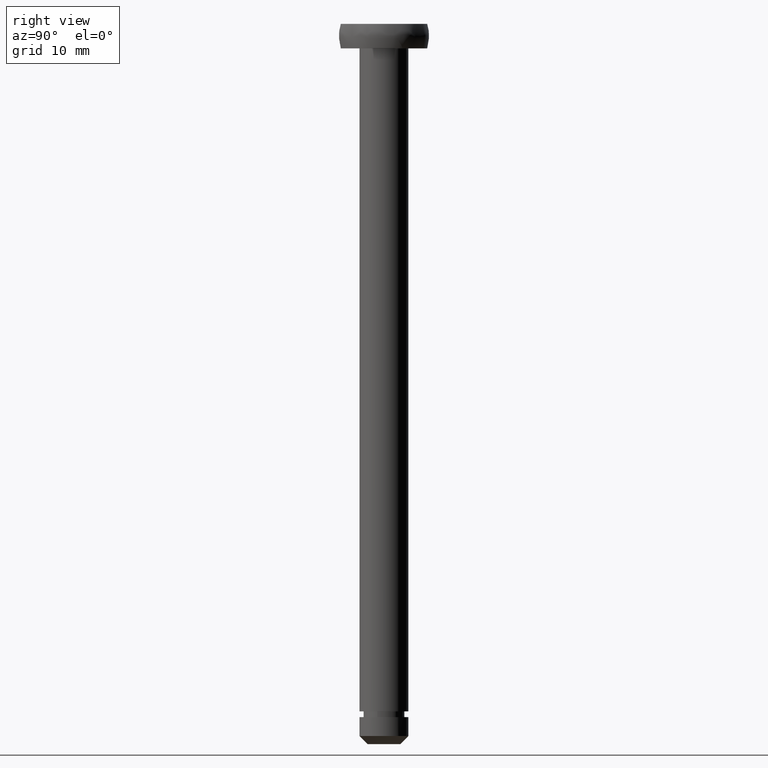
[diagram: clean part render]
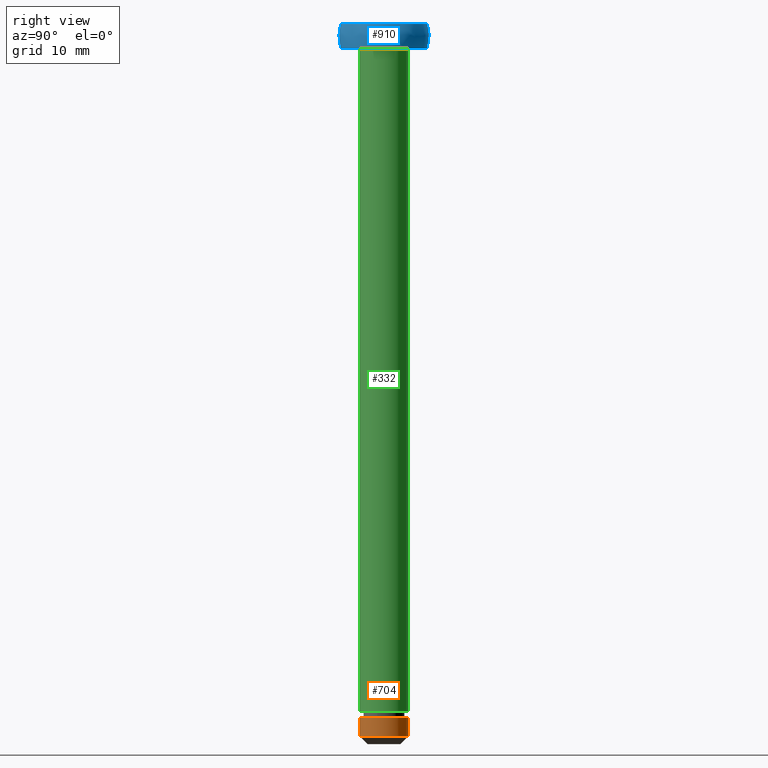
[diagram: same view with three faces highlighted in distinct colors, each labeled with its STEP entity id]
A machine part, right view with three faces highlighted in distinct colors.
Their STEP definitions:

[orange] entity #704 — the highlighted face is a freeform B-spline surface patch.
#438=CARTESIAN_POINT('',(-0.354102703992168,2.979028579088397,1.000000000000000));
#439=VERTEX_POINT('',#438);
#440=CARTESIAN_POINT('',(2.529120146451898,1.613552380587868,1.000000000014941));
#441=VERTEX_POINT('',#440);
#442=CARTESIAN_POINT('',(-0.354102703992168,2.979028579088397,1.000000000000000));
#443=CARTESIAN_POINT('',(-0.177672358977854,3.0,1.0));
#444=CARTESIAN_POINT('',(0.0,3.0,1.0));
#445=CARTESIAN_POINT('',(1.644580967672012,3.000000000000000,1.0));
#446=CARTESIAN_POINT('',(2.529120146451898,1.613552380587869,1.000000000014941));
#454=(BOUNDED_CURVE()B_SPLINE_CURVE(2,(#442,#443,#444,#445,#446),.UNSPECIFIED.,.F.,.U.)B_SPLINE_CURVE_WITH_KNOTS((3,2,3),(0.229562473513160,0.250000000000000,0.407950112598444),.UNSPECIFIED.)CURVE()GEOMETRIC_REPRESENTATION_ITEM()RATIONAL_B_SPLINE_CURVE((0.956026754183017,0.976055948330737,1.0,0.814949932436378,0.863729296936946))REPRESENTATION_ITEM(''));
#455=EDGE_CURVE('',#439,#441,#454,.T.);
#498=CARTESIAN_POINT('',(0.235377287306013,-2.990752001205871,1.000000000016077));
#499=VERTEX_POINT('',#498);
#505=CARTESIAN_POINT('',(0.183145618696712,-2.994404395259965,1.000000000000000));
#506=VERTEX_POINT('',#505);
#507=CARTESIAN_POINT('',(0.235377287306013,-2.990752001205872,1.000000000016077));
#508=CARTESIAN_POINT('',(0.209277390087529,-2.992806107650916,1.0));
#509=CARTESIAN_POINT('',(0.183145618696712,-2.994404395259965,1.000000000000000));
#517=(BOUNDED_CURVE()B_SPLINE_CURVE(2,(#507,#508,#509),.UNSPECIFIED.,.F.,.U.)B_SPLINE_CURVE_WITH_KNOTS((3,3),(0.736331300618871,0.739332962231349),.UNSPECIFIED.)CURVE()GEOMETRIC_REPRESENTATION_ITEM()RATIONAL_B_SPLINE_CURVE((0.969723356142816,0.972855475539379,0.976072041650444))REPRESENTATION_ITEM(''));
#518=EDGE_CURVE('',#499,#506,#517,.T.);
#571=CARTESIAN_POINT('',(3.0,0.0,1.0));
#572=VERTEX_POINT('',#571);
#573=CARTESIAN_POINT('',(2.529120146451898,1.613552380587868,1.000000000014941));
#574=CARTESIAN_POINT('',(3.0,0.875484166448296,1.0));
#575=CARTESIAN_POINT('',(3.0,0.0,1.0));
#583=(BOUNDED_CURVE()B_SPLINE_CURVE(2,(#573,#574,#575),.UNSPECIFIED.,.F.,.U.)B_SPLINE_CURVE_WITH_KNOTS((3,3),(0.407950112598444,0.500000000000000),.UNSPECIFIED.)CURVE()GEOMETRIC_REPRESENTATION_ITEM()RATIONAL_B_SPLINE_CURVE((0.863729296936946,0.892156848750170,1.0))REPRESENTATION_ITEM(''));
#584=EDGE_CURVE('',#441,#572,#583,.T.);
#586=CARTESIAN_POINT('',(3.0,0.0,1.0));
#587=CARTESIAN_POINT('',(3.000000000000000,-2.773171474749122,1.0));
#588=CARTESIAN_POINT('',(0.235377287306013,-2.990752001205871,1.000000000016077));
#596=(BOUNDED_CURVE()B_SPLINE_CURVE(2,(#586,#587,#588),.UNSPECIFIED.,.F.,.U.)B_SPLINE_CURVE_WITH_KNOTS((3,3),(0.500000000000000,0.736331300618871),.UNSPECIFIED.)CURVE()GEOMETRIC_REPRESENTATION_ITEM()RATIONAL_B_SPLINE_CURVE((1.0,0.723120658621477,0.969723356142815))REPRESENTATION_ITEM(''));
#597=EDGE_CURVE('',#572,#499,#596,.T.);
#632=CARTESIAN_POINT('',(-0.354102703970275,2.979028579091000,3.357503075000002));
#633=CARTESIAN_POINT('',(-0.268844185913933,2.989162846345817,3.357503075000000));
#634=CARTESIAN_POINT('',(-0.183145618604571,2.994404395265600,3.357503075000001));
#635=CARTESIAN_POINT('',(2.811258776661029,3.177550013870171,3.357503075000001));
#636=CARTESIAN_POINT('',(2.994404395265600,0.183145618604571,3.357503075000001));
#637=CARTESIAN_POINT('',(3.177550013870171,-2.811258776661029,3.357503075000001));
#638=CARTESIAN_POINT('',(0.183145618604571,-2.994404395265600,3.357503075000001));
#639=CARTESIAN_POINT('',(-0.354102703970275,2.979028579091000,0.941062423125000));
#640=CARTESIAN_POINT('',(-0.268844185913933,2.989162846345817,0.941062423125000));
#641=CARTESIAN_POINT('',(-0.183145618604571,2.994404395265600,0.941062423125000));
#642=CARTESIAN_POINT('',(2.811258776661029,3.177550013870171,0.941062423125000));
#643=CARTESIAN_POINT('',(2.994404395265600,0.183145618604571,0.941062423125000));
#644=CARTESIAN_POINT('',(3.177550013870171,-2.811258776661029,0.941062423125000));
#645=CARTESIAN_POINT('',(0.183145618604571,-2.994404395265600,0.941062423125000));
#653=(BOUNDED_SURFACE()B_SPLINE_SURFACE(2,1,((#632,#639),(#633,#640),(#634,#641),(#635,#642),(#636,#643),(#637,#644),(#638,#645)),.UNSPECIFIED.,.F.,.F.,.U.)B_SPLINE_SURFACE_WITH_KNOTS((3,2,2,3),(2,2),(0.0,0.198822509939086,5.169385258416225,10.139948006893370),(0.0,2.416440651875001),.UNSPECIFIED.)GEOMETRIC_REPRESENTATION_ITEM()RATIONAL_B_SPLINE_SURFACE(((0.977505800795127,0.977505800795127),(0.988284271247462,0.988284271247462),(1.0,1.0),(0.707106781186548,0.707106781186548),(1.0,1.0),(0.707106781186548,0.707106781186548),(1.0,1.0)))REPRESENTATION_ITEM('')SURFACE());
#654=ORIENTED_EDGE('',*,*,#455,.F.);
#655=CARTESIAN_POINT('',(-0.354102703992168,2.979028579088397,3.300003000000000));
#656=VERTEX_POINT('',#655);
#657=CARTESIAN_POINT('',(-0.354102703992168,2.979028579088397,3.300003000000000));
#658=CARTESIAN_POINT('',(-0.354102703992168,2.979028579088397,1.000000000000000));
#659=QUASI_UNIFORM_CURVE('',1,(#657,#658),.UNSPECIFIED.,.F.,.U.);
#660=EDGE_CURVE('',#656,#439,#659,.T.);
#661=ORIENTED_EDGE('',*,*,#660,.F.);
#662=CARTESIAN_POINT('',(3.0,0.0,3.300003000000000));
#663=VERTEX_POINT('',#662);
#664=CARTESIAN_POINT('',(-0.354102703992168,2.979028579088397,3.300003000000001));
#665=CARTESIAN_POINT('',(-0.177672358977854,3.0,3.300003000000000));
#666=CARTESIAN_POINT('',(0.0,3.0,3.300003000000000));
#667=CARTESIAN_POINT('',(3.0,3.0,3.300003000000001));
#668=CARTESIAN_POINT('',(3.0,0.0,3.300003000000000));
#676=(BOUNDED_CURVE()B_SPLINE_CURVE(2,(#664,#665,#666,#667,#668),.UNSPECIFIED.,.F.,.U.)B_SPLINE_CURVE_WITH_KNOTS((3,2,3),(0.229562473513160,0.250000000000000,0.500000000000000),.UNSPECIFIED.)CURVE()GEOMETRIC_REPRESENTATION_ITEM()RATIONAL_B_SPLINE_CURVE((0.956026754183017,0.976055948330737,1.0,0.707106781186548,1.0))REPRESENTATION_ITEM(''));
#677=EDGE_CURVE('',#656,#663,#676,.T.);
#678=ORIENTED_EDGE('',*,*,#677,.T.);
#679=CARTESIAN_POINT('',(0.183145618696712,-2.994404395259965,3.300003000000000));
#680=VERTEX_POINT('',#679);
#681=CARTESIAN_POINT('',(3.0,0.0,3.300003000000000));
#682=CARTESIAN_POINT('',(3.000000000000001,-2.822118200543074,3.300003000000001));
#683=CARTESIAN_POINT('',(0.183145618696712,-2.994404395259965,3.300003000000000));
#691=(BOUNDED_CURVE()B_SPLINE_CURVE(2,(#681,#682,#683),.UNSPECIFIED.,.F.,.U.)B_SPLINE_CURVE_WITH_KNOTS((3,3),(0.500000000000000,0.739332962231349),.UNSPECIFIED.)CURVE()GEOMETRIC_REPRESENTATION_ITEM()RATIONAL_B_SPLINE_CURVE((1.0,0.719603993295607,0.976072041650442))REPRESENTATION_ITEM(''));
#692=EDGE_CURVE('',#663,#680,#691,.T.);
#693=ORIENTED_EDGE('',*,*,#692,.T.);
#694=CARTESIAN_POINT('',(0.183145618696712,-2.994404395259965,3.300003000000000));
#695=CARTESIAN_POINT('',(0.183145618696712,-2.994404395259965,1.000000000000000));
#696=QUASI_UNIFORM_CURVE('',1,(#694,#695),.UNSPECIFIED.,.F.,.U.);
#697=EDGE_CURVE('',#680,#506,#696,.T.);
#698=ORIENTED_EDGE('',*,*,#697,.T.);
#699=ORIENTED_EDGE('',*,*,#518,.F.);
#700=ORIENTED_EDGE('',*,*,#597,.F.);
#701=ORIENTED_EDGE('',*,*,#584,.F.);
#702=EDGE_LOOP('',(#654,#661,#678,#693,#698,#699,#700,#701));
#703=FACE_OUTER_BOUND('',#702,.T.);
#704=ADVANCED_FACE('',(#703),#653,.T.);

[blue] entity #910 — the highlighted face is a freeform B-spline surface patch.
#783=CARTESIAN_POINT('',(-5.291502599401650,0.0,85.000007919824697));
#784=VERTEX_POINT('',#783);
#785=CARTESIAN_POINT('',(5.291502599401650,0.0,85.000007919824697));
#786=VERTEX_POINT('',#785);
#787=CARTESIAN_POINT('',(-5.291502599401650,0.0,85.000007919824697));
#788=CARTESIAN_POINT('',(-5.291502599401650,5.291502599401650,85.000007919824697));
#789=CARTESIAN_POINT('',(0.0,5.291502599401650,85.000007919824697));
#790=CARTESIAN_POINT('',(5.291502599401650,5.291502599401650,85.000007919824697));
#791=CARTESIAN_POINT('',(5.291502599401650,0.0,85.000007919824697));
#799=(BOUNDED_CURVE()B_SPLINE_CURVE(2,(#787,#788,#789,#790,#791),.UNSPECIFIED.,.F.,.U.)B_SPLINE_CURVE_WITH_KNOTS((3,2,3),(0.0,0.250000000000000,0.500000000000000),.UNSPECIFIED.)CURVE()GEOMETRIC_REPRESENTATION_ITEM()RATIONAL_B_SPLINE_CURVE((1.0,0.707106781186548,1.0,0.707106781186548,1.0))REPRESENTATION_ITEM(''));
#800=EDGE_CURVE('',#784,#786,#799,.T.);
#802=CARTESIAN_POINT('',(5.291502599401650,0.0,85.000007919824697));
#803=CARTESIAN_POINT('',(5.291502599401650,-5.291502599401650,85.000007919824697));
#804=CARTESIAN_POINT('',(0.0,-5.291502599401650,85.000007919824697));
#805=CARTESIAN_POINT('',(-5.291502599401650,-5.291502599401650,85.000007919824697));
#806=CARTESIAN_POINT('',(-5.291502599401650,0.0,85.000007919824697));
#814=(BOUNDED_CURVE()B_SPLINE_CURVE(2,(#802,#803,#804,#805,#806),.UNSPECIFIED.,.F.,.U.)B_SPLINE_CURVE_WITH_KNOTS((3,2,3),(0.500000000000000,0.750000000000000,1.0),.UNSPECIFIED.)CURVE()GEOMETRIC_REPRESENTATION_ITEM()RATIONAL_B_SPLINE_CURVE((1.0,0.707106781186548,1.0,0.707106781186548,1.0))REPRESENTATION_ITEM(''));
#815=EDGE_CURVE('',#786,#784,#814,.T.);
#826=CARTESIAN_POINT('',(-3.164920383337688,3.164920383337682,89.696343078533943));
#827=CARTESIAN_POINT('',(-2.958400293070957,3.944533724094603,89.128882388254397));
#828=CARTESIAN_POINT('',(-1.308441110860388,5.233764443441546,88.190484190476099));
#829=CARTESIAN_POINT('',(1.308441110860388,5.233764443441546,88.190484190476099));
#830=CARTESIAN_POINT('',(2.958400293070957,3.944533724094603,89.128882388254397));
#831=CARTESIAN_POINT('',(3.164920383337688,3.164920383337682,89.696343078533943));
#832=CARTESIAN_POINT('',(-3.944533724094608,2.958400293070952,89.128882388254397));
#833=CARTESIAN_POINT('',(-3.925323332581163,3.925323332581159,88.190484190476099));
#834=CARTESIAN_POINT('',(-1.943729238641478,5.831187715924435,86.340844012861666));
#835=CARTESIAN_POINT('',(1.943729238641478,5.831187715924435,86.340844012861666));
#836=CARTESIAN_POINT('',(3.925323332581163,3.925323332581159,88.190484190476099));
#837=CARTESIAN_POINT('',(3.944533724094608,2.958400293070952,89.128882388254397));
#838=CARTESIAN_POINT('',(-5.233764443441549,1.308441110860385,88.190484190476099));
#839=CARTESIAN_POINT('',(-5.831187715924435,1.943729238641479,86.340844012861666));
#840=CARTESIAN_POINT('',(-3.778123707609383,3.778123707609393,81.000007999999909));
#841=CARTESIAN_POINT('',(3.778123707609383,3.778123707609393,81.000007999999909));
#842=CARTESIAN_POINT('',(5.831187715924435,1.943729238641479,86.340844012861666));
#843=CARTESIAN_POINT('',(5.233764443441549,1.308441110860385,88.190484190476099));
#844=CARTESIAN_POINT('',(-5.233764443441549,-1.308441110860391,88.190484190476099));
#845=CARTESIAN_POINT('',(-5.831187715924435,-1.943729238641478,86.340844012861666));
#846=CARTESIAN_POINT('',(-3.778123707609383,-3.778123707609374,81.000007999999895));
#847=CARTESIAN_POINT('',(3.778123707609383,-3.778123707609374,81.000007999999895));
#848=CARTESIAN_POINT('',(5.831187715924435,-1.943729238641478,86.340844012861666));
#849=CARTESIAN_POINT('',(5.233764443441549,-1.308441110860391,88.190484190476099));
#850=CARTESIAN_POINT('',(-3.944533724094608,-2.958400293070962,89.128882388254368));
#851=CARTESIAN_POINT('',(-3.925323332581163,-3.925323332581166,88.190484190476099));
#852=CARTESIAN_POINT('',(-1.943729238641478,-5.831187715924435,86.340844012861666));
#853=CARTESIAN_POINT('',(1.943729238641478,-5.831187715924435,86.340844012861666));
#854=CARTESIAN_POINT('',(3.925323332581163,-3.925323332581166,88.190484190476099));
#855=CARTESIAN_POINT('',(3.944533724094608,-2.958400293070962,89.128882388254368));
#856=CARTESIAN_POINT('',(-3.164920383337688,-3.164920383337694,89.696343078533914));
#857=CARTESIAN_POINT('',(-2.958400293070957,-3.944533724094613,89.128882388254368));
#858=CARTESIAN_POINT('',(-1.308441110860388,-5.233764443441553,88.190484190476099));
#859=CARTESIAN_POINT('',(1.308441110860388,-5.233764443441553,88.190484190476099));
#860=CARTESIAN_POINT('',(2.958400293070957,-3.944533724094613,89.128882388254368));
#861=CARTESIAN_POINT('',(3.164920383337688,-3.164920383337694,89.696343078533914));
#869=(BOUNDED_SURFACE()B_SPLINE_SURFACE(2,2,((#826,#832,#838,#844,#850,#856),(#827,#833,#839,#845,#851,#857),(#828,#834,#840,#846,#852,#858),(#829,#835,#841,#847,#853,#859),(#830,#836,#842,#848,#854,#860),(#831,#837,#843,#849,#855,#861)),.UNSPECIFIED.,.F.,.F.,.U.)B_SPLINE_SURFACE_WITH_KNOTS((3,1,1,1,3),(3,1,1,1,3),(0.0,6.113777933931748,12.227555867863501,18.341333801795241,24.455111735726991),(0.0,6.113777933931751,12.227555867863501,18.341333801795258,24.455111735727009),.UNSPECIFIED.)GEOMETRIC_REPRESENTATION_ITEM()RATIONAL_B_SPLINE_SURFACE(((4.775000000000022,3.831250000000016,2.887500000000011,2.887500000000011,3.831250000000016,4.775000000000022),(3.831250000000016,2.887500000000011,1.943750000000005,1.943750000000005,2.887500000000011,3.831250000000016),(2.887500000000011,1.943750000000005,1.0,1.0,1.943750000000005,2.887500000000011),(2.887500000000011,1.943750000000005,1.0,1.0,1.943750000000005,2.887500000000011),(3.831250000000016,2.887500000000011,1.943750000000005,1.943750000000005,2.887500000000011,3.831250000000016),(4.775000000000022,3.831250000000016,2.887500000000011,2.887500000000011,3.831250000000016,4.775000000000022)))REPRESENTATION_ITEM('')SURFACE());
#870=ORIENTED_EDGE('',*,*,#800,.F.);
#871=ORIENTED_EDGE('',*,*,#815,.F.);
#872=EDGE_LOOP('',(#870,#871));
#873=FACE_OUTER_BOUND('',#872,.T.);
#874=CARTESIAN_POINT('',(-5.291502000000000,0.0,88.000007999999895));
#875=VERTEX_POINT('',#874);
#876=CARTESIAN_POINT('',(5.291502000000000,0.0,88.000007999999895));
#877=VERTEX_POINT('',#876);
#878=CARTESIAN_POINT('',(-5.291502000000000,0.0,88.000007999999895));
#879=CARTESIAN_POINT('',(-5.291502000000000,5.291502000000000,88.000007999999895));
#880=CARTESIAN_POINT('',(0.0,5.291502000000000,88.000007999999895));
#881=CARTESIAN_POINT('',(5.291502000000000,5.291502000000000,88.000007999999895));
#882=CARTESIAN_POINT('',(5.291502000000000,0.0,88.000007999999895));
#890=(BOUNDED_CURVE()B_SPLINE_CURVE(2,(#878,#879,#880,#881,#882),.UNSPECIFIED.,.F.,.U.)B_SPLINE_CURVE_WITH_KNOTS((3,2,3),(0.0,0.250000000000000,0.500000000000000),.UNSPECIFIED.)CURVE()GEOMETRIC_REPRESENTATION_ITEM()RATIONAL_B_SPLINE_CURVE((1.0,0.707106781186548,1.0,0.707106781186548,1.0))REPRESENTATION_ITEM(''));
#891=EDGE_CURVE('',#875,#877,#890,.T.);
#892=ORIENTED_EDGE('',*,*,#891,.T.);
#893=CARTESIAN_POINT('',(5.291502000000000,0.0,88.000007999999895));
#894=CARTESIAN_POINT('',(5.291502000000000,-5.291502000000000,88.000007999999895));
#895=CARTESIAN_POINT('',(0.0,-5.291502000000000,88.000007999999895));
#896=CARTESIAN_POINT('',(-5.291502000000000,-5.291502000000000,88.000007999999895));
#897=CARTESIAN_POINT('',(-5.291502000000000,0.0,88.000007999999895));
#905=(BOUNDED_CURVE()B_SPLINE_CURVE(2,(#893,#894,#895,#896,#897),.UNSPECIFIED.,.F.,.U.)B_SPLINE_CURVE_WITH_KNOTS((3,2,3),(0.500000000000000,0.750000000000000,1.0),.UNSPECIFIED.)CURVE()GEOMETRIC_REPRESENTATION_ITEM()RATIONAL_B_SPLINE_CURVE((1.0,0.707106781186548,1.0,0.707106781186548,1.0))REPRESENTATION_ITEM(''));
#906=EDGE_CURVE('',#877,#875,#905,.T.);
#907=ORIENTED_EDGE('',*,*,#906,.T.);
#908=EDGE_LOOP('',(#892,#907));
#909=FACE_BOUND('',#908,.T.);
#910=ADVANCED_FACE('',(#873,#909),#869,.T.);

[green] entity #332 — the highlighted face is a freeform B-spline surface patch.
#230=CARTESIAN_POINT('',(-0.354102703970275,2.979028579091000,87.025008200000045));
#231=CARTESIAN_POINT('',(-0.268844185913933,2.989162846345817,87.025008200000030));
#232=CARTESIAN_POINT('',(-0.183145618604571,2.994404395265600,87.025008200000030));
#233=CARTESIAN_POINT('',(2.811258776661029,3.177550013870171,87.025008200000030));
#234=CARTESIAN_POINT('',(2.994404395265600,0.183145618604571,87.025008200000030));
#235=CARTESIAN_POINT('',(3.177550013870171,-2.811258776661029,87.025008200000030));
#236=CARTESIAN_POINT('',(0.183145618604571,-2.994404395265600,87.025008200000030));
#237=CARTESIAN_POINT('',(-0.354102703970275,2.979028579091000,1.924374795000006));
#238=CARTESIAN_POINT('',(-0.268844185913933,2.989162846345817,1.924374795000006));
#239=CARTESIAN_POINT('',(-0.183145618604571,2.994404395265600,1.924374795000006));
#240=CARTESIAN_POINT('',(2.811258776661029,3.177550013870171,1.924374795000005));
#241=CARTESIAN_POINT('',(2.994404395265600,0.183145618604571,1.924374795000006));
#242=CARTESIAN_POINT('',(3.177550013870171,-2.811258776661029,1.924374795000005));
#243=CARTESIAN_POINT('',(0.183145618604571,-2.994404395265600,1.924374795000006));
#251=(BOUNDED_SURFACE()B_SPLINE_SURFACE(2,1,((#230,#237),(#231,#238),(#232,#239),(#233,#240),(#234,#241),(#235,#242),(#236,#243)),.UNSPECIFIED.,.F.,.F.,.U.)B_SPLINE_SURFACE_WITH_KNOTS((3,2,2,3),(2,2),(0.0,0.198822509939086,5.169385258416225,10.139948006893370),(0.0,85.100633405000039),.UNSPECIFIED.)GEOMETRIC_REPRESENTATION_ITEM()RATIONAL_B_SPLINE_SURFACE(((0.977505800795127,0.977505800795127),(0.988284271247462,0.988284271247462),(1.0,1.0),(0.707106781186548,0.707106781186548),(1.0,1.0),(0.707106781186548,0.707106781186548),(1.0,1.0)))REPRESENTATION_ITEM('')SURFACE());
#252=CARTESIAN_POINT('',(-0.354102703992168,2.979028579088397,3.999999999999999));
#253=VERTEX_POINT('',#252);
#254=CARTESIAN_POINT('',(3.0,0.0,4.0));
#255=VERTEX_POINT('',#254);
#256=CARTESIAN_POINT('',(-0.354102703992168,2.979028579088397,3.999999999999999));
#257=CARTESIAN_POINT('',(-0.177672358977854,3.0,4.0));
#258=CARTESIAN_POINT('',(0.0,3.0,4.0));
#259=CARTESIAN_POINT('',(3.0,3.0,4.000000000000000));
#260=CARTESIAN_POINT('',(3.0,0.0,4.0));
#268=(BOUNDED_CURVE()B_SPLINE_CURVE(2,(#256,#257,#258,#259,#260),.UNSPECIFIED.,.F.,.U.)B_SPLINE_CURVE_WITH_KNOTS((3,2,3),(0.229562473513160,0.250000000000000,0.500000000000000),.UNSPECIFIED.)CURVE()GEOMETRIC_REPRESENTATION_ITEM()RATIONAL_B_SPLINE_CURVE((0.956026754183017,0.976055948330737,1.0,0.707106781186548,1.0))REPRESENTATION_ITEM(''));
#269=EDGE_CURVE('',#253,#255,#268,.T.);
#270=ORIENTED_EDGE('',*,*,#269,.F.);
#271=CARTESIAN_POINT('',(-0.354102703992168,2.979028579088397,85.000008000000008));
#272=VERTEX_POINT('',#271);
#273=CARTESIAN_POINT('',(-0.354102703992168,2.979028579088397,85.000008000000008));
#274=CARTESIAN_POINT('',(-0.354102703992168,2.979028579088397,3.999999999999999));
#275=QUASI_UNIFORM_CURVE('',1,(#273,#274),.UNSPECIFIED.,.F.,.U.);
#276=EDGE_CURVE('',#272,#253,#275,.T.);
#277=ORIENTED_EDGE('',*,*,#276,.F.);
#278=CARTESIAN_POINT('',(3.0,0.0,85.000008000000008));
#279=VERTEX_POINT('',#278);
#280=CARTESIAN_POINT('',(-0.354102703992168,2.979028579088397,85.000008000000008));
#281=CARTESIAN_POINT('',(-0.177672358977854,3.0,85.000008000000008));
#282=CARTESIAN_POINT('',(0.0,3.0,85.000008000000008));
#283=CARTESIAN_POINT('',(3.0,3.0,85.000008000000008));
#284=CARTESIAN_POINT('',(3.0,0.0,85.000008000000008));
#292=(BOUNDED_CURVE()B_SPLINE_CURVE(2,(#280,#281,#282,#283,#284),.UNSPECIFIED.,.F.,.U.)B_SPLINE_CURVE_WITH_KNOTS((3,2,3),(0.229562473513160,0.250000000000000,0.500000000000000),.UNSPECIFIED.)CURVE()GEOMETRIC_REPRESENTATION_ITEM()RATIONAL_B_SPLINE_CURVE((0.956026754183017,0.976055948330737,1.0,0.707106781186548,1.0))REPRESENTATION_ITEM(''));
#293=EDGE_CURVE('',#272,#279,#292,.T.);
#294=ORIENTED_EDGE('',*,*,#293,.T.);
#295=CARTESIAN_POINT('',(0.183145618696712,-2.994404395259965,85.000008000000008));
#296=VERTEX_POINT('',#295);
#297=CARTESIAN_POINT('',(3.0,0.0,85.000008000000008));
#298=CARTESIAN_POINT('',(3.000000000000001,-2.822118200543074,85.000008000000008));
#299=CARTESIAN_POINT('',(0.183145618696712,-2.994404395259965,85.000008000000008));
#307=(BOUNDED_CURVE()B_SPLINE_CURVE(2,(#297,#298,#299),.UNSPECIFIED.,.F.,.U.)B_SPLINE_CURVE_WITH_KNOTS((3,3),(0.500000000000000,0.739332962231349),.UNSPECIFIED.)CURVE()GEOMETRIC_REPRESENTATION_ITEM()RATIONAL_B_SPLINE_CURVE((1.0,0.719603993295607,0.976072041650442))REPRESENTATION_ITEM(''));
#308=EDGE_CURVE('',#279,#296,#307,.T.);
#309=ORIENTED_EDGE('',*,*,#308,.T.);
#310=CARTESIAN_POINT('',(0.183145618696712,-2.994404395259965,3.999999999999999));
#311=VERTEX_POINT('',#310);
#312=CARTESIAN_POINT('',(0.183145618696712,-2.994404395259965,85.000008000000008));
#313=CARTESIAN_POINT('',(0.183145618696712,-2.994404395259965,3.999999999999999));
#314=QUASI_UNIFORM_CURVE('',1,(#312,#313),.UNSPECIFIED.,.F.,.U.);
#315=EDGE_CURVE('',#296,#311,#314,.T.);
#316=ORIENTED_EDGE('',*,*,#315,.T.);
#317=CARTESIAN_POINT('',(3.0,0.0,4.0));
#318=CARTESIAN_POINT('',(3.000000000000001,-2.822118200543074,4.000000000000000));
#319=CARTESIAN_POINT('',(0.183145618696712,-2.994404395259965,3.999999999999999));
#327=(BOUNDED_CURVE()B_SPLINE_CURVE(2,(#317,#318,#319),.UNSPECIFIED.,.F.,.U.)B_SPLINE_CURVE_WITH_KNOTS((3,3),(0.500000000000000,0.739332962231349),.UNSPECIFIED.)CURVE()GEOMETRIC_REPRESENTATION_ITEM()RATIONAL_B_SPLINE_CURVE((1.0,0.719603993295607,0.976072041650442))REPRESENTATION_ITEM(''));
#328=EDGE_CURVE('',#255,#311,#327,.T.);
#329=ORIENTED_EDGE('',*,*,#328,.F.);
#330=EDGE_LOOP('',(#270,#277,#294,#309,#316,#329));
#331=FACE_OUTER_BOUND('',#330,.T.);
#332=ADVANCED_FACE('',(#331),#251,.T.);